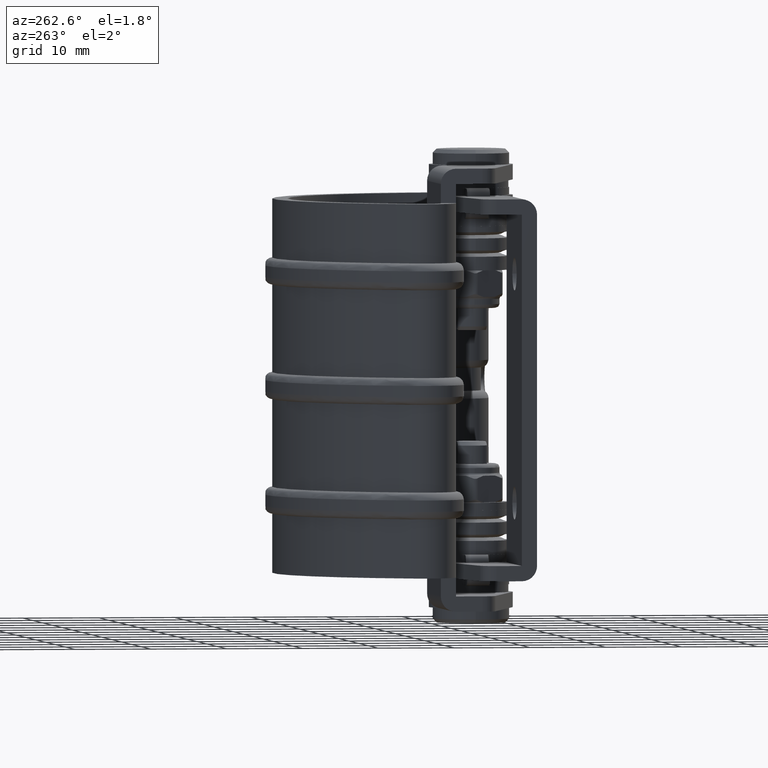
[diagram: clean part render]
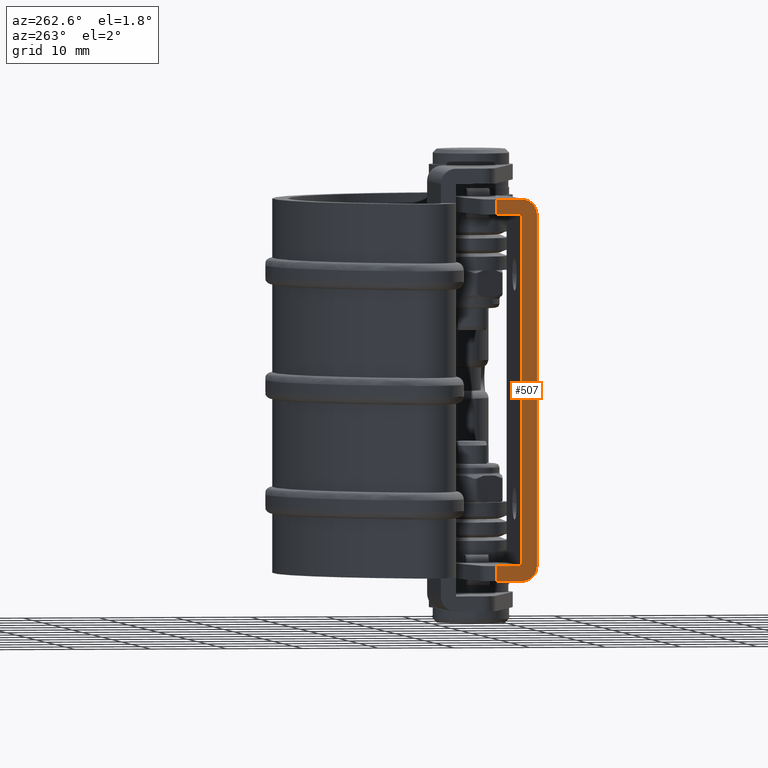
[diagram: same view with one face highlighted and labeled with its STEP entity id]
A machine part, auxiliary view. The second image highlights one B-rep face of the part: STEP entity #507.
In plain terms, the highlighted planar face has unit normal (1, 0, 0).
Its self-contained STEP definition (entity closure, byte-faithful):
#507=ADVANCED_FACE('',(#4525),#4524,.F.);
#4524=PLANE('',#8744);
#4525=FACE_OUTER_BOUND('',#8745,.T.);
#8741=CARTESIAN_POINT('',(-2.10000000000E+01,-6.53365434809E+00,3.00000000000E+01));
#8742=DIRECTION('',(1.00000000000E+00,0.00000000000E+00,0.00000000000E+00));
#8743=DIRECTION('',(0.00000000000E+00,0.00000000000E+00,-1.00000000000E+00));
#8744=AXIS2_PLACEMENT_3D('',#8741,#8742,#8743);
#8745=EDGE_LOOP('',(#10796,#10797,#10798,#10799,#10800,#10801,#10802,#10803,#10804,#10805));
#10796=ORIENTED_EDGE('',*,*,#11909,.T.);
#10797=ORIENTED_EDGE('',*,*,#11845,.T.);
#10798=ORIENTED_EDGE('',*,*,#11903,.F.);
#10799=ORIENTED_EDGE('',*,*,#11897,.F.);
#10800=ORIENTED_EDGE('',*,*,#11894,.F.);
#10801=ORIENTED_EDGE('',*,*,#11886,.F.);
#10802=ORIENTED_EDGE('',*,*,#11884,.F.);
#10803=ORIENTED_EDGE('',*,*,#11857,.F.);
#10804=ORIENTED_EDGE('',*,*,#11908,.F.);
#10805=ORIENTED_EDGE('',*,*,#11833,.T.);
#11833=EDGE_CURVE('',#17908,#17901,#17909,.T.);
#11845=EDGE_CURVE('',#17992,#17985,#17993,.T.);
#11857=EDGE_CURVE('',#18065,#18050,#18072,.T.);
#11884=EDGE_CURVE('',#18050,#18252,#18253,.T.);
#11886=EDGE_CURVE('',#18252,#18265,#18266,.T.);
#11894=EDGE_CURVE('',#18265,#18320,#18321,.T.);
#11897=EDGE_CURVE('',#18320,#18333,#18340,.T.);
#11903=EDGE_CURVE('',#18333,#17985,#18380,.T.);
#11908=EDGE_CURVE('',#17908,#18065,#18414,.T.);
#11909=EDGE_CURVE('',#17901,#17992,#18420,.T.);
#17901=VERTEX_POINT('',#22593);
#17908=VERTEX_POINT('',#22598);
#17909=LINE('',#22599,#22600);
#17985=VERTEX_POINT('',#22647);
#17992=VERTEX_POINT('',#22651);
#17993=LINE('',#22652,#22653);
#18050=VERTEX_POINT('',#22685);
#18065=VERTEX_POINT('',#22694);
#18072=LINE('',#22698,#22699);
#18252=VERTEX_POINT('',#22808);
#18253=CIRCLE('',#22812,2.00000000000E+00);
#18265=VERTEX_POINT('',#22816);
#18266=LINE('',#22817,#22818);
#18320=VERTEX_POINT('',#22851);
#18321=LINE('',#22852,#22853);
#18333=VERTEX_POINT('',#22859);
#18340=LINE('',#22863,#22864);
#18380=LINE('',#22888,#22889);
#18414=CIRCLE('',#22914,2.00000000000E+00);
#18420=LINE('',#22915,#22916);
#22593=CARTESIAN_POINT('',(-2.10000000000E+01,-6.63456519075E-01,2.50000000000E+01));
#22598=CARTESIAN_POINT('',(-2.10000000000E+01,-4.00000000000E+00,2.50000000000E+01));
#22599=CARTESIAN_POINT('',(-2.10000000000E+01,-4.00000000000E+00,2.50000000000E+01));
#22600=VECTOR('',#22601,3.33654348092E+00);
#22601=DIRECTION('',(-2.12957733002E-15,1.00000000000E+00,4.36563352654E-13));
#22647=CARTESIAN_POINT('',(-2.10000000000E+01,-4.00000000000E+00,2.30000000000E+01));
#22651=CARTESIAN_POINT('',(-2.10000000000E+01,-6.63456519075E-01,2.30000000000E+01));
#22652=CARTESIAN_POINT('',(-2.10000000000E+01,-6.63456519075E-01,2.30000000000E+01));
#22653=VECTOR('',#22654,3.33654348092E+00);
#22654=DIRECTION('',(-1.06478866501E-15,-1.00000000000E+00,4.41887295979E-13));
#22685=CARTESIAN_POINT('',(-2.10000000000E+01,-6.00000000000E+00,-2.30000000000E+01));
#22694=CARTESIAN_POINT('',(-2.10000000000E+01,-6.00000000000E+00,2.30000000000E+01));
#22698=CARTESIAN_POINT('',(-2.10000000000E+01,-6.00000000000E+00,2.30000000000E+01));
#22699=VECTOR('',#22700,4.60000000000E+01);
#22700=DIRECTION('',(5.09737180002E-15,2.74176816516E-15,-1.00000000000E+00));
#22808=CARTESIAN_POINT('',(-2.10000000000E+01,-4.00000000000E+00,-2.50000000000E+01));
#22809=CARTESIAN_POINT('',(-2.10000000000E+01,-4.00000000000E+00,-2.30000000000E+01));
#22810=DIRECTION('',(1.00000000000E+00,0.00000000000E+00,0.00000000000E+00));
#22811=DIRECTION('',(-0.00000000000E+00,1.00000000000E+00,-5.15143483426E-14));
#22812=AXIS2_PLACEMENT_3D('',#22809,#22810,#22811);
#22816=CARTESIAN_POINT('',(-2.10000000000E+01,-6.63456519075E-01,-2.50000000000E+01));
#22817=CARTESIAN_POINT('',(-2.10000000000E+01,-4.00000000000E+00,-2.50000000000E+01));
#22818=VECTOR('',#22819,3.33654348093E+00);
#22819=DIRECTION('',(-7.34704178857E-14,1.00000000000E+00,-4.36563352654E-13));
#22851=CARTESIAN_POINT('',(-2.10000000000E+01,-6.63456519075E-01,-2.30000000000E+01));
#22852=CARTESIAN_POINT('',(-2.10000000000E+01,-6.63456519075E-01,-2.50000000000E+01));
#22853=VECTOR('',#22854,2.00000000000E+00);
#22854=DIRECTION('',(0.00000000000E+00,0.00000000000E+00,1.00000000000E+00));
#22859=CARTESIAN_POINT('',(-2.10000000000E+01,-4.00000000000E+00,-2.30000000000E+01));
#22863=CARTESIAN_POINT('',(-2.10000000000E+01,-6.63456519075E-01,-2.30000000000E+01));
#22864=VECTOR('',#22865,3.33654348093E+00);
#22865=DIRECTION('',(-1.06478866501E-15,-1.00000000000E+00,-4.41887295979E-13));
#22888=CARTESIAN_POINT('',(-2.10000000000E+01,-4.00000000000E+00,-2.30000000000E+01));
#22889=VECTOR('',#22890,4.60000000000E+01);
#22890=DIRECTION('',(0.00000000000E+00,0.00000000000E+00,1.00000000000E+00));
#22911=CARTESIAN_POINT('',(-2.10000000000E+01,-4.00000000000E+00,2.30000000000E+01));
#22912=DIRECTION('',(1.00000000000E+00,0.00000000000E+00,-0.00000000000E+00));
#22913=DIRECTION('',(-0.00000000000E+00,-0.00000000000E+00,-1.00000000000E+00));
#22914=AXIS2_PLACEMENT_3D('',#22911,#22912,#22913);
#22915=CARTESIAN_POINT('',(-2.10000000000E+01,-6.63456519075E-01,2.50000000000E+01));
#22916=VECTOR('',#22917,2.00000000000E+00);
#22917=DIRECTION('',(0.00000000000E+00,0.00000000000E+00,-1.00000000000E+00));